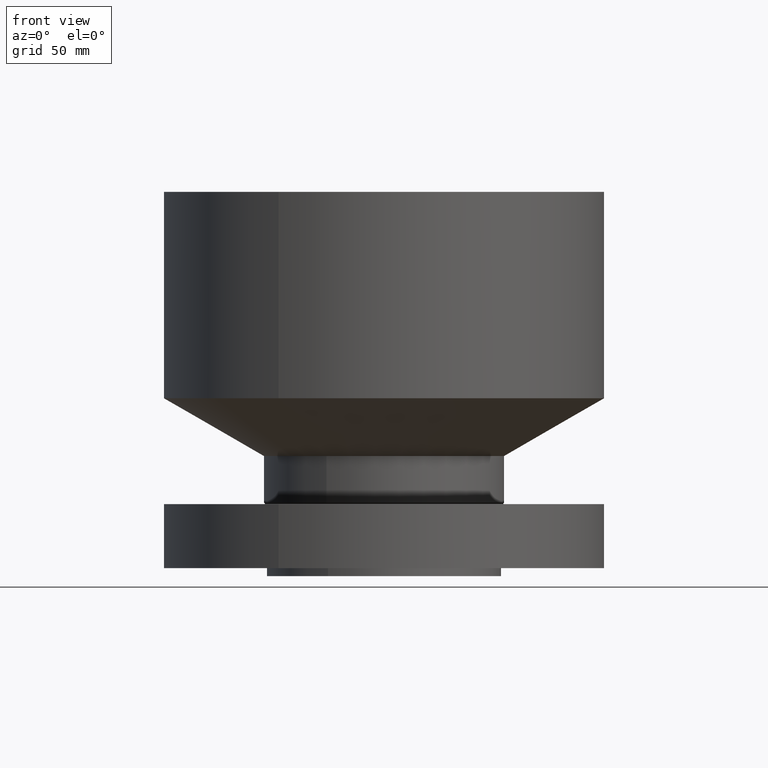
[diagram: clean part render]
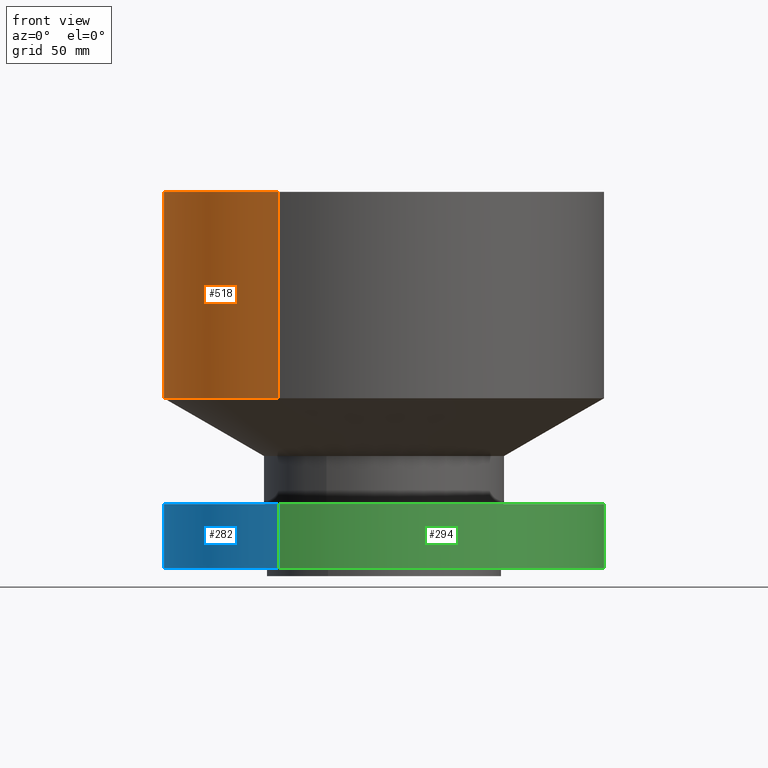
[diagram: same view with three faces highlighted in distinct colors, each labeled with its STEP entity id]
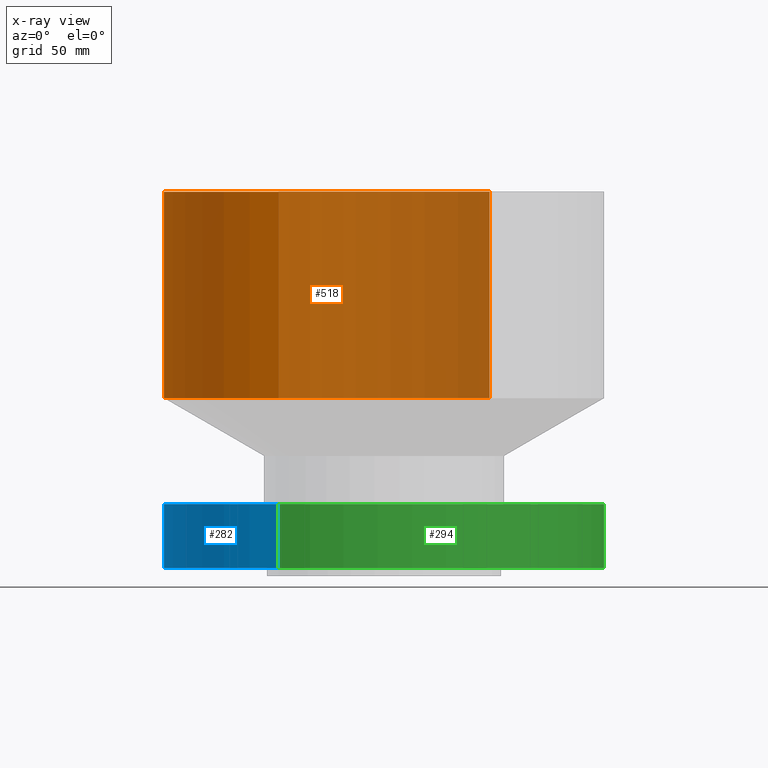
[diagram: x-ray of the same camera — body ghosted, the three highlighted faces saturated]
A machine part, front view with three faces highlighted in distinct colors.
The next image is the same camera in x-ray (body ghosted, the three faces saturated) — at least one of them is partly hidden behind the body in this view.
Their STEP definitions:

[orange] entity #518 — the highlighted cylindrical surface (partial cylindrical patch) has radius 174.625 mm, axis along (0, 0, -1).
#255=AXIS2_PLACEMENT_3D('Cylinder Axis2P3D',#252,#253,#254) ;
#471=AXIS2_PLACEMENT_3D('Circle Axis2P3D',#469,#470,$) ;
#509=AXIS2_PLACEMENT_3D('Circle Axis2P3D',#507,#508,$) ;
#252=CARTESIAN_POINT('Axis2P3D Location',(0.,0.,5.75000000002)) ;
#447=CARTESIAN_POINT('Vertex',(3.29605057792,6.03338011302,5.30421959124)) ;
#454=CARTESIAN_POINT('Vertex',(-3.29605057792,-6.03338011302,5.30421959124)) ;
#469=CARTESIAN_POINT('Axis2P3D Location',(0.,0.,5.30421959124)) ;
#481=CARTESIAN_POINT('Line Origine',(3.29605057792,6.03338011302,8.52710979564)) ;
#485=CARTESIAN_POINT('Vertex',(3.29605057792,6.03338011302,11.75)) ;
#492=CARTESIAN_POINT('Vertex',(-3.29605057792,-6.03338011302,11.75)) ;
#495=CARTESIAN_POINT('Line Origine',(-3.29605057792,-6.03338011302,8.52710979564)) ;
#507=CARTESIAN_POINT('Axis2P3D Location',(0.,0.,11.75)) ;
#253=DIRECTION('Axis2P3D Direction',(0.,0.,-0.0393700787402)) ;
#254=DIRECTION('Axis2P3D XDirection',(-0.0188750212049,-0.0345504945626,0.)) ;
#470=DIRECTION('Axis2P3D Direction',(-0.,0.,0.0393700787402)) ;
#482=DIRECTION('Vector Direction',(0.,0.,-0.0393700787402)) ;
#496=DIRECTION('Vector Direction',(0.,0.,-0.0393700787402)) ;
#508=DIRECTION('Axis2P3D Direction',(0.,0.,-0.0393700787402)) ;
#483=VECTOR('Line Direction',#482,0.0393700787402) ;
#497=VECTOR('Line Direction',#496,0.0393700787402) ;
#513=ORIENTED_EDGE('',*,*,#473,.F.) ;
#514=ORIENTED_EDGE('',*,*,#499,.T.) ;
#515=ORIENTED_EDGE('',*,*,#511,.T.) ;
#516=ORIENTED_EDGE('',*,*,#487,.F.) ;
#518=ADVANCED_FACE('PartBody',(#517),#256,.T.) ;
#472=CIRCLE('generated circle',#471,6.87500000003) ;
#510=CIRCLE('generated circle',#509,6.87500000003) ;
#256=CYLINDRICAL_SURFACE('generated cylinder',#255,6.87500000003) ;
#473=EDGE_CURVE('',#455,#448,#472,.F.) ;
#487=EDGE_CURVE('',#448,#486,#484,.F.) ;
#499=EDGE_CURVE('',#455,#493,#498,.F.) ;
#511=EDGE_CURVE('',#493,#486,#510,.T.) ;
#512=EDGE_LOOP('',(#513,#514,#515,#516)) ;
#517=FACE_OUTER_BOUND('',#512,.T.) ;
#484=LINE('Line',#481,#483) ;
#498=LINE('Line',#495,#497) ;
#448=VERTEX_POINT('',#447) ;
#455=VERTEX_POINT('',#454) ;
#486=VERTEX_POINT('',#485) ;
#493=VERTEX_POINT('',#492) ;

[blue] entity #282 — the highlighted cylindrical surface (partial cylindrical patch) has radius 174.625 mm, axis along (0, 0, -1).
#82=AXIS2_PLACEMENT_3D('Circle Axis2P3D',#80,#81,$) ;
#255=AXIS2_PLACEMENT_3D('Cylinder Axis2P3D',#252,#253,#254) ;
#266=AXIS2_PLACEMENT_3D('Circle Axis2P3D',#264,#265,$) ;
#80=CARTESIAN_POINT('Axis2P3D Location',(0.,0.,0.)) ;
#84=CARTESIAN_POINT('Vertex',(-3.29605057792,-6.03338011302,1.1189649382E-015)) ;
#86=CARTESIAN_POINT('Vertex',(3.29605057792,6.03338011302,1.1189649382E-015)) ;
#252=CARTESIAN_POINT('Axis2P3D Location',(0.,0.,5.75000000002)) ;
#257=CARTESIAN_POINT('Line Origine',(-3.29605057792,-6.03338011302,8.52710979564)) ;
#261=CARTESIAN_POINT('Vertex',(-3.29605057792,-6.03338011302,2.00000000001)) ;
#264=CARTESIAN_POINT('Axis2P3D Location',(0.,0.,2.00000000001)) ;
#268=CARTESIAN_POINT('Vertex',(3.29605057792,6.03338011302,2.00000000001)) ;
#271=CARTESIAN_POINT('Line Origine',(3.29605057792,6.03338011302,8.52710979564)) ;
#81=DIRECTION('Axis2P3D Direction',(0.,0.,-0.0393700787402)) ;
#253=DIRECTION('Axis2P3D Direction',(0.,0.,-0.0393700787402)) ;
#254=DIRECTION('Axis2P3D XDirection',(-0.0188750212049,-0.0345504945626,0.)) ;
#258=DIRECTION('Vector Direction',(0.,0.,-0.0393700787402)) ;
#265=DIRECTION('Axis2P3D Direction',(0.,0.,-0.0393700787402)) ;
#272=DIRECTION('Vector Direction',(0.,0.,-0.0393700787402)) ;
#259=VECTOR('Line Direction',#258,0.0393700787402) ;
#273=VECTOR('Line Direction',#272,0.0393700787402) ;
#277=ORIENTED_EDGE('',*,*,#88,.F.) ;
#278=ORIENTED_EDGE('',*,*,#263,.T.) ;
#279=ORIENTED_EDGE('',*,*,#270,.T.) ;
#280=ORIENTED_EDGE('',*,*,#275,.F.) ;
#282=ADVANCED_FACE('PartBody',(#281),#256,.T.) ;
#83=CIRCLE('generated circle',#82,6.87500000003) ;
#267=CIRCLE('generated circle',#266,6.87500000003) ;
#256=CYLINDRICAL_SURFACE('generated cylinder',#255,6.87500000003) ;
#88=EDGE_CURVE('',#85,#87,#83,.T.) ;
#263=EDGE_CURVE('',#85,#262,#260,.F.) ;
#270=EDGE_CURVE('',#262,#269,#267,.T.) ;
#275=EDGE_CURVE('',#87,#269,#274,.F.) ;
#276=EDGE_LOOP('',(#277,#278,#279,#280)) ;
#281=FACE_OUTER_BOUND('',#276,.T.) ;
#260=LINE('Line',#257,#259) ;
#274=LINE('Line',#271,#273) ;
#85=VERTEX_POINT('',#84) ;
#87=VERTEX_POINT('',#86) ;
#262=VERTEX_POINT('',#261) ;
#269=VERTEX_POINT('',#268) ;

[green] entity #294 — the highlighted cylindrical surface (partial cylindrical patch) has radius 174.625 mm, axis along (0, 0, -1).
#91=AXIS2_PLACEMENT_3D('Circle Axis2P3D',#89,#90,$) ;
#255=AXIS2_PLACEMENT_3D('Cylinder Axis2P3D',#252,#253,#254) ;
#285=AXIS2_PLACEMENT_3D('Circle Axis2P3D',#283,#284,$) ;
#84=CARTESIAN_POINT('Vertex',(-3.29605057792,-6.03338011302,1.1189649382E-015)) ;
#86=CARTESIAN_POINT('Vertex',(3.29605057792,6.03338011302,1.1189649382E-015)) ;
#89=CARTESIAN_POINT('Axis2P3D Location',(0.,0.,0.)) ;
#252=CARTESIAN_POINT('Axis2P3D Location',(0.,0.,5.75000000002)) ;
#257=CARTESIAN_POINT('Line Origine',(-3.29605057792,-6.03338011302,8.52710979564)) ;
#261=CARTESIAN_POINT('Vertex',(-3.29605057792,-6.03338011302,2.00000000001)) ;
#268=CARTESIAN_POINT('Vertex',(3.29605057792,6.03338011302,2.00000000001)) ;
#271=CARTESIAN_POINT('Line Origine',(3.29605057792,6.03338011302,8.52710979564)) ;
#283=CARTESIAN_POINT('Axis2P3D Location',(0.,0.,2.00000000001)) ;
#90=DIRECTION('Axis2P3D Direction',(0.,0.,-0.0393700787402)) ;
#253=DIRECTION('Axis2P3D Direction',(0.,0.,-0.0393700787402)) ;
#254=DIRECTION('Axis2P3D XDirection',(-0.0188750212049,-0.0345504945626,0.)) ;
#258=DIRECTION('Vector Direction',(0.,0.,-0.0393700787402)) ;
#272=DIRECTION('Vector Direction',(0.,0.,-0.0393700787402)) ;
#284=DIRECTION('Axis2P3D Direction',(0.,0.,-0.0393700787402)) ;
#259=VECTOR('Line Direction',#258,0.0393700787402) ;
#273=VECTOR('Line Direction',#272,0.0393700787402) ;
#289=ORIENTED_EDGE('',*,*,#93,.F.) ;
#290=ORIENTED_EDGE('',*,*,#275,.T.) ;
#291=ORIENTED_EDGE('',*,*,#287,.T.) ;
#292=ORIENTED_EDGE('',*,*,#263,.F.) ;
#294=ADVANCED_FACE('PartBody',(#293),#256,.T.) ;
#92=CIRCLE('generated circle',#91,6.87500000003) ;
#286=CIRCLE('generated circle',#285,6.87500000003) ;
#256=CYLINDRICAL_SURFACE('generated cylinder',#255,6.87500000003) ;
#93=EDGE_CURVE('',#87,#85,#92,.T.) ;
#263=EDGE_CURVE('',#85,#262,#260,.F.) ;
#275=EDGE_CURVE('',#87,#269,#274,.F.) ;
#287=EDGE_CURVE('',#269,#262,#286,.T.) ;
#288=EDGE_LOOP('',(#289,#290,#291,#292)) ;
#293=FACE_OUTER_BOUND('',#288,.T.) ;
#260=LINE('Line',#257,#259) ;
#274=LINE('Line',#271,#273) ;
#85=VERTEX_POINT('',#84) ;
#87=VERTEX_POINT('',#86) ;
#262=VERTEX_POINT('',#261) ;
#269=VERTEX_POINT('',#268) ;